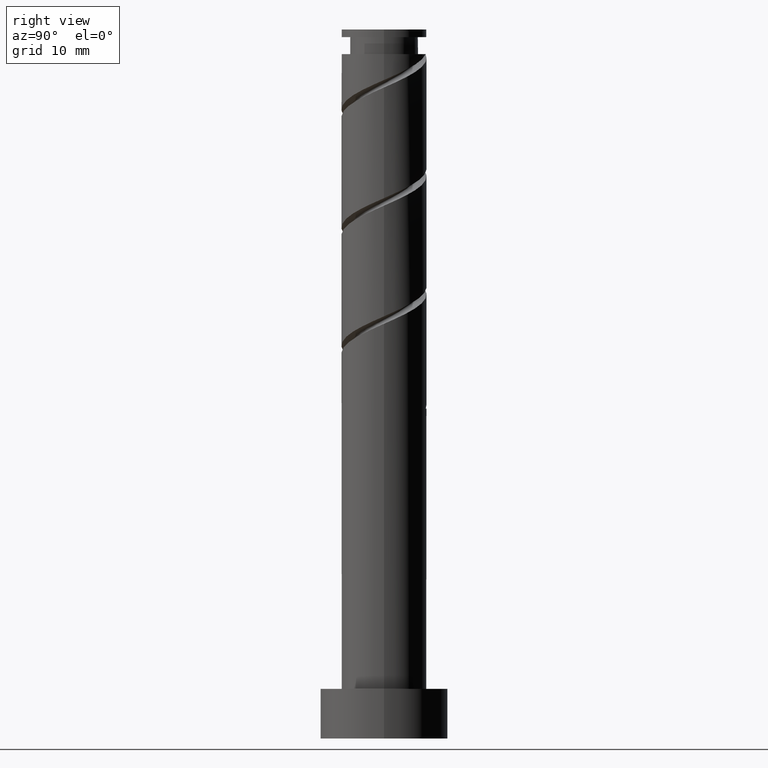
[diagram: clean part render]
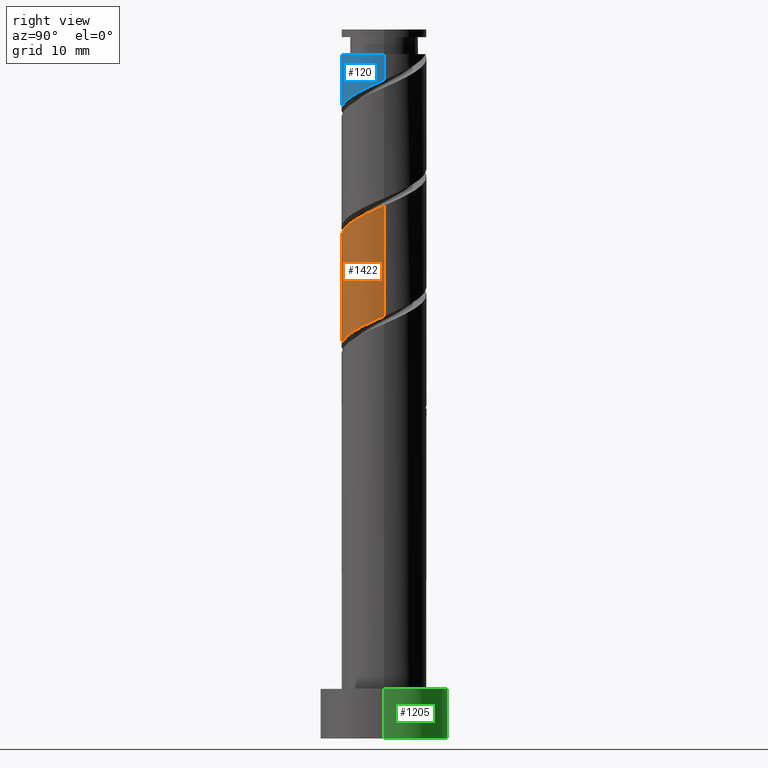
[diagram: same view with three faces highlighted in distinct colors, each labeled with its STEP entity id]
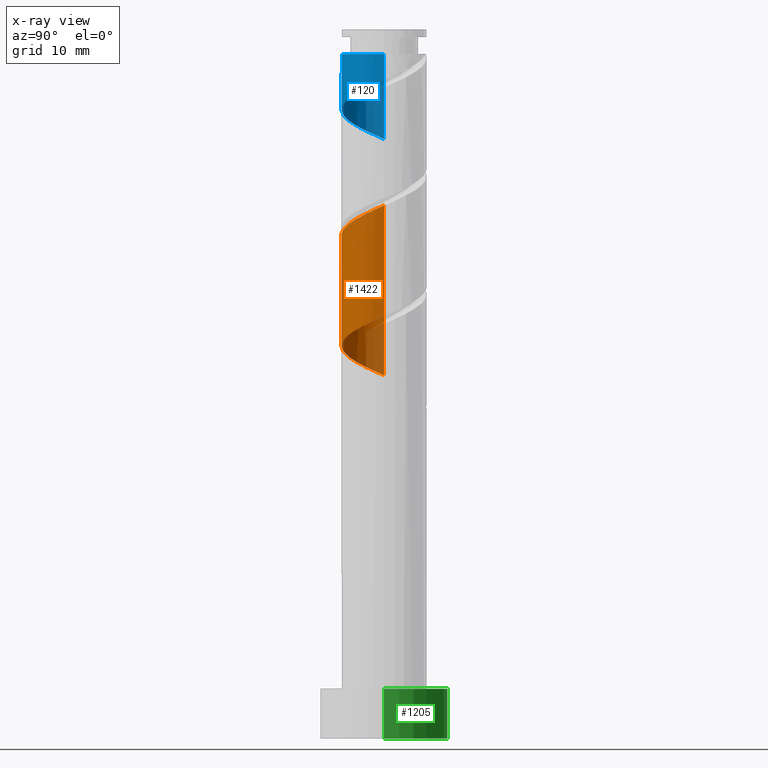
[diagram: x-ray of the same camera — body ghosted, the three highlighted faces saturated]
A machine part, right view with three faces highlighted in distinct colors.
The next image is the same camera in x-ray (body ghosted, the three faces saturated) — at least one of them is partly hidden behind the body in this view.
Their STEP definitions:

[orange] entity #1422 — the highlighted cylindrical surface (partial cylindrical patch) has radius 6 mm, axis along (-0, -0, -1).
#6 =( BOUNDED_CURVE ( )  B_SPLINE_CURVE ( 2, ( #596, #740, #279, #150, #485, #730, #368, #1312, #58, #1306, #1062, #1046, #704, #51, #176, #272, #1167, #842, #949, #287, #30 ),
 .UNSPECIFIED., .F., .T. ) 
 B_SPLINE_CURVE_WITH_KNOTS ( ( 3, 2, 2, 2, 2, 2, 2, 2, 2, 2, 3 ),
 ( 0.8045248053855290626, 0.8055555555555555802, 0.8194444444444444198, 0.8333333333333333703, 0.8472222222222222099, 0.8611111111111111605, 0.8750000000000000000, 0.8888888888888888395, 0.9027777777777777901, 0.9166666666666666297, 0.9295248053855290626 ),
 .UNSPECIFIED. ) 
 CURVE ( )  GEOMETRIC_REPRESENTATION_ITEM ( )  RATIONAL_B_SPLINE_CURVE ( ( 0.9071930855141192573, 0.9080659294509669799, 0.9090909090909071733, 0.8952797754656418583, 0.9090909090909071733, 0.8952797754656418583, 0.9090909090909071733, 0.8952797754656418583, 0.9090909090909071733, 0.8952797754656418583, 0.9090909090909071733, 0.8952797754656418583, 0.9090909090909071733, 0.8952797754656418583, 0.9090909090909071733, 0.8952797754656418583, 0.9090909090909071733, 0.8952797754656418583, 0.9090909090909071733, 0.8963047551055818296, 0.9071930855141192573 ) ) 
 REPRESENTATION_ITEM ( '' )  );
#30 = CARTESIAN_POINT ( 'NONE',  ( -6.000000000000001776, -2.793586744269143145E-15, 51.21902418610984853 ) ) ;
#44 = DIRECTION ( 'NONE',  ( -0.000000000000000000, -0.000000000000000000, -1.000000000000000000 ) ) ;
#51 = CARTESIAN_POINT ( 'NONE',  ( -2.230787571093720612, -5.669468243246560846, 54.39187300149144733 ) ) ;
#57 = VERTEX_POINT ( 'NONE', #103 ) ;
#58 = CARTESIAN_POINT ( 'NONE',  ( 2.864945628354387264, -5.271820041178671978, 56.70668781630626398 ) ) ;
#59 = LINE ( 'NONE', #364, #854 ) ;
#67 = CARTESIAN_POINT ( 'NONE',  ( -5.998002894017859354, -0.1547943259732638965, 66.89187300149146154 ) ) ;
#84 = CARTESIAN_POINT ( 'NONE',  ( 6.000000000000010658, -4.227727532770921479E-15, 75.15731440946565556 ) ) ;
#90 = CARTESIAN_POINT ( 'NONE',  ( 6.000000000000010658, -4.227727532770921479E-15, 75.15731440946565556 ) ) ;
#100 = CARTESIAN_POINT ( 'NONE',  ( 3.133057265663464985, -5.117025715205415715, 72.44742855704700446 ) ) ;
#103 = CARTESIAN_POINT ( 'NONE',  ( -6.000000000000001776, -2.793586744269143145E-15, 51.21902418610984853 ) ) ;
#150 = CARTESIAN_POINT ( 'NONE',  ( 5.970708477888182486, -1.212404066556068694, 59.02150263112106643 ) ) ;
#176 = CARTESIAN_POINT ( 'NONE',  ( -3.133057265663461877, -5.117025715205405945, 53.92891003852850673 ) ) ;
#183 = CARTESIAN_POINT ( 'NONE',  ( -0.8890996198464066191, -5.933759505236886334, 70.59557670519517103 ) ) ;
#190 = CARTESIAN_POINT ( 'NONE',  ( 5.689221836516479947, -1.905978723623161342, 74.29928040889886631 ) ) ;
#196 = EDGE_CURVE ( 'NONE', #968, #57, #59, .T. ) ;
#212 = CARTESIAN_POINT ( 'NONE',  ( 6.000000000000002665, 3.734741636723452938E-16, 59.55235751944319134 ) ) ;
#272 = CARTESIAN_POINT ( 'NONE',  ( -4.035326960233204474, -4.564583187164251044, 53.46594707556551640 ) ) ;
#279 = CARTESIAN_POINT ( 'NONE',  ( 5.998002894017848696, -0.1547943259732674770, 59.48446559408404966 ) ) ;
#287 = CARTESIAN_POINT ( 'NONE',  ( -6.000000000000001776, -0.9783262309227395148, 51.64894369847546329 ) ) ;
#298 = CARTESIAN_POINT ( 'NONE',  ( -5.583336281405729018, -2.196896895336367894, 67.81779892741737115 ) ) ;
#319 =( BOUNDED_CURVE ( )  B_SPLINE_CURVE ( 2, ( #771, #858, #67, #645, #298, #1117, #990, #1357, #1091, #1212, #183, #1107, #428, #520, #100, #434, #1335, #546, #190, #629, #90 ),
 .UNSPECIFIED., .F., .T. ) 
 B_SPLINE_CURVE_WITH_KNOTS ( ( 3, 2, 2, 2, 2, 2, 2, 2, 2, 2, 3 ),
 ( 0.3045248053855290626, 0.3055555555555555802, 0.3194444444444444198, 0.3333333333333333703, 0.3472222222222222099, 0.3611111111111111605, 0.3750000000000000000, 0.3888888888888888395, 0.4027777777777777901, 0.4166666666666666297, 0.4295248053855290626 ),
 .UNSPECIFIED. ) 
 CURVE ( )  GEOMETRIC_REPRESENTATION_ITEM ( )  RATIONAL_B_SPLINE_CURVE ( ( 0.9071930855141251415, 0.9080659294509728641, 0.9090909090909129464, 0.8952797754656475204, 0.9090909090909129464, 0.8952797754656475204, 0.9090909090909129464, 0.8952797754656475204, 0.9090909090909129464, 0.8952797754656475204, 0.9090909090909129464, 0.8952797754656475204, 0.9090909090909129464, 0.8952797754656475204, 0.9090909090909129464, 0.8952797754656475204, 0.9090909090909129464, 0.8952797754656475204, 0.9090909090909129464, 0.8963047551055876028, 0.9071930855141251415 ) ) 
 REPRESENTATION_ITEM ( '' )  );
#364 = CARTESIAN_POINT ( 'NONE',  ( -6.000000000000000888, 0.000000000000000000, 100.0000000000000000 ) ) ;
#368 = CARTESIAN_POINT ( 'NONE',  ( 4.495236911988526707, -3.974021276376848100, 57.63261374223219491 ) ) ;
#381 = DIRECTION ( 'NONE',  ( -0.000000000000000000, -0.000000000000000000, -1.000000000000000000 ) ) ;
#391 = ORIENTED_EDGE ( 'NONE', *, *, #499, .F. ) ;
#400 = VERTEX_POINT ( 'NONE', #212 ) ;
#412 = LINE ( 'NONE', #1454, #997 ) ;
#428 = CARTESIAN_POINT ( 'NONE',  ( 1.193984924527945024, -5.880000000000011440, 71.52150263112109485 ) ) ;
#434 = CARTESIAN_POINT ( 'NONE',  ( 4.035326960233208027, -4.564583187164259037, 72.91039152000993795 ) ) ;
#476 = EDGE_CURVE ( 'NONE', #968, #580, #319, .T. ) ;
#485 = CARTESIAN_POINT ( 'NONE',  ( 5.583336281405718360, -2.196896895336366562, 58.55853966815811162 ) ) ;
#499 = EDGE_CURVE ( 'NONE', #580, #400, #412, .T. ) ;
#503 = EDGE_LOOP ( 'NONE', ( #391, #1043, #1190, #1317 ) ) ;
#520 = CARTESIAN_POINT ( 'NONE',  ( 2.230787571093717503, -5.669468243246575057, 71.98446559408404255 ) ) ;
#537 = DIRECTION ( 'NONE',  ( -0.000000000000000000, -0.000000000000000000, -1.000000000000000000 ) ) ;
#546 = CARTESIAN_POINT ( 'NONE',  ( 5.353146362885433440, -2.909142032636777842, 73.83631744593589019 ) ) ;
#550 = CARTESIAN_POINT ( 'NONE',  ( -6.000000000000011546, 4.362178231692965454E-15, 66.82398107613232696 ) ) ;
#580 = VERTEX_POINT ( 'NONE', #84 ) ;
#596 = CARTESIAN_POINT ( 'NONE',  ( 6.000000000000002665, 3.734741636723452938E-16, 59.55235751944319134 ) ) ;
#615 = CYLINDRICAL_SURFACE ( 'NONE', #884, 6.000000000000000888 ) ;
#629 = CARTESIAN_POINT ( 'NONE',  ( 6.000000000000009770, -0.9783262309227460651, 74.72739489710004079 ) ) ;
#645 = CARTESIAN_POINT ( 'NONE',  ( -5.970708477888191368, -1.212404066556068249, 67.35483596445439503 ) ) ;
#704 = CARTESIAN_POINT ( 'NONE',  ( -1.193984924527944802, -5.879999999999999893, 54.85483596445440924 ) ) ;
#730 = CARTESIAN_POINT ( 'NONE',  ( 5.195964084923254234, -3.181389724116668649, 58.09557670519514261 ) ) ;
#740 = CARTESIAN_POINT ( 'NONE',  ( 6.000000000000001776, -0.07741004599212769621, 59.51834014551081964 ) ) ;
#771 = CARTESIAN_POINT ( 'NONE',  ( -6.000000000000012434, 4.362178231692966242E-15, 66.82398107613232696 ) ) ;
#842 = CARTESIAN_POINT ( 'NONE',  ( -5.353146362885426335, -2.909142032636772068, 52.54002114963959258 ) ) ;
#854 = VECTOR ( 'NONE', #381, 1000.000000000000000 ) ;
#858 = CARTESIAN_POINT ( 'NONE',  ( -6.000000000000010658, -0.07741004599212389370, 66.85799845006468445 ) ) ;
#884 = AXIS2_PLACEMENT_3D ( 'NONE', #1192, #44, #1184 ) ;
#949 = CARTESIAN_POINT ( 'NONE',  ( -5.689221836516472841, -1.905978723623153348, 52.07705818667664488 ) ) ;
#968 = VERTEX_POINT ( 'NONE', #550 ) ;
#990 = CARTESIAN_POINT ( 'NONE',  ( -4.495236911988537365, -3.974021276376850764, 68.74372485334330918 ) ) ;
#997 = VECTOR ( 'NONE', #537, 1000.000000000000000 ) ;
#1043 = ORIENTED_EDGE ( 'NONE', *, *, #476, .F. ) ;
#1046 = CARTESIAN_POINT ( 'NONE',  ( -0.1571822779621721289, -6.090531756753438053, 55.31779892741737115 ) ) ;
#1052 = FACE_OUTER_BOUND ( 'NONE', #503, .T. ) ;
#1062 = CARTESIAN_POINT ( 'NONE',  ( 0.8890996198464030664, -5.933759505236876564, 55.78076189038034016 ) ) ;
#1091 = CARTESIAN_POINT ( 'NONE',  ( -2.864945628354393481, -5.271820041178679084, 69.66965077926924721 ) ) ;
#1107 = CARTESIAN_POINT ( 'NONE',  ( 0.1571822779621672717, -6.090531756753446935, 71.05853966815810452 ) ) ;
#1117 = CARTESIAN_POINT ( 'NONE',  ( -5.195964084923264892, -3.181389724116668205, 68.28076189038033306 ) ) ;
#1167 = CARTESIAN_POINT ( 'NONE',  ( -4.694236661559316737, -3.736862609900509558, 53.00298411260256159 ) ) ;
#1184 = DIRECTION ( 'NONE',  ( -1.000000000000000000, 0.000000000000000000, 0.000000000000000000 ) ) ;
#1190 = ORIENTED_EDGE ( 'NONE', *, *, #196, .T. ) ;
#1192 = CARTESIAN_POINT ( 'NONE',  ( 0.000000000000000000, 0.000000000000000000, 100.0000000000000000 ) ) ;
#1212 = CARTESIAN_POINT ( 'NONE',  ( -1.935381517654979788, -5.776987253720324844, 70.13261374223216649 ) ) ;
#1306 = CARTESIAN_POINT ( 'NONE',  ( 1.935381517654975347, -5.776987253720316851, 56.24372485334328786 ) ) ;
#1312 = CARTESIAN_POINT ( 'NONE',  ( 3.794509739053796515, -4.766652828637027994, 57.16965077926922589 ) ) ;
#1317 = ORIENTED_EDGE ( 'NONE', *, *, #1468, .F. ) ;
#1335 = CARTESIAN_POINT ( 'NONE',  ( 4.694236661559322066, -3.736862609900517107, 73.37335448297294249 ) ) ;
#1357 = CARTESIAN_POINT ( 'NONE',  ( -3.794509739053804509, -4.766652828637032435, 69.20668781630625688 ) ) ;
#1422 = ADVANCED_FACE ( 'NONE', ( #1052 ), #615, .T. ) ;
#1454 = CARTESIAN_POINT ( 'NONE',  ( 6.000000000000000888, 7.347880794884119736E-16, 100.0000000000000000 ) ) ;
#1468 = EDGE_CURVE ( 'NONE', #400, #57, #6, .T. ) ;

[blue] entity #120 — the highlighted cylindrical surface (partial cylindrical patch) has radius 6 mm, axis along (-0, -0, -1).
#93 = CARTESIAN_POINT ( 'NONE',  ( -6.000000000000000000, -3.450901272332469505E-15, 84.55235751944317713 ) ) ;
#107 = CARTESIAN_POINT ( 'NONE',  ( -6.000000000000000888, 0.000000000000000000, 100.0000000000000000 ) ) ;
#115 = CARTESIAN_POINT ( 'NONE',  ( -0.1571822779621721289, -6.090531756753438053, 88.65113226075068553 ) ) ;
#120 = ADVANCED_FACE ( 'NONE', ( #1007 ), #421, .T. ) ;
#199 = DIRECTION ( 'NONE',  ( -0.000000000000000000, -0.000000000000000000, -1.000000000000000000 ) ) ;
#207 = ORIENTED_EDGE ( 'NONE', *, *, #1011, .F. ) ;
#218 = DIRECTION ( 'NONE',  ( -0.000000000000000000, -0.000000000000000000, -1.000000000000000000 ) ) ;
#223 = CARTESIAN_POINT ( 'NONE',  ( 6.000000000000000888, 1.015849725188778931E-15, 92.88569085277649151 ) ) ;
#284 = AXIS2_PLACEMENT_3D ( 'NONE', #864, #1226, #1200 ) ;
#322 = DIRECTION ( 'NONE',  ( -0.000000000000000000, -0.000000000000000000, -1.000000000000000000 ) ) ;
#336 = VECTOR ( 'NONE', #322, 1000.000000000000000 ) ;
#371 = CARTESIAN_POINT ( 'NONE',  ( 5.970708477888182486, -1.212404066556068694, 92.35483596445438081 ) ) ;
#384 = EDGE_LOOP ( 'NONE', ( #918, #623, #416, #207 ) ) ;
#416 = ORIENTED_EDGE ( 'NONE', *, *, #1384, .T. ) ;
#421 = CYLINDRICAL_SURFACE ( 'NONE', #1045, 6.000000000000000888 ) ;
#447 = LINE ( 'NONE', #1100, #336 ) ;
#452 = CARTESIAN_POINT ( 'NONE',  ( 6.000000000000000888, 1.015849725188778931E-15, 92.88569085277649151 ) ) ;
#473 = VERTEX_POINT ( 'NONE', #1249 ) ;
#497 = VERTEX_POINT ( 'NONE', #1001 ) ;
#560 = CARTESIAN_POINT ( 'NONE',  ( -1.193984924527944802, -5.879999999999999893, 88.18816929778775204 ) ) ;
#623 = ORIENTED_EDGE ( 'NONE', *, *, #799, .T. ) ;
#625 = VERTEX_POINT ( 'NONE', #452 ) ;
#639 = CARTESIAN_POINT ( 'NONE',  ( -5.689221836516472841, -1.905978723623153348, 85.41039152000998058 ) ) ;
#660 = LINE ( 'NONE', #107, #930 ) ;
#781 = CARTESIAN_POINT ( 'NONE',  ( -5.999999999999999112, -0.9783262309227438447, 84.98227703180880610 ) ) ;
#789 = CARTESIAN_POINT ( 'NONE',  ( 2.864945628354387264, -5.271820041178671978, 90.04002114963958547 ) ) ;
#799 = EDGE_CURVE ( 'NONE', #497, #473, #928, .T. ) ;
#851 = CARTESIAN_POINT ( 'NONE',  ( 3.794509739053796515, -4.766652828637027994, 90.50298411260253317 ) ) ;
#864 = CARTESIAN_POINT ( 'NONE',  ( 0.000000000000000000, 0.000000000000000000, 96.52150263112108064 ) ) ;
#879 = DIRECTION ( 'NONE',  ( -1.000000000000000000, 0.000000000000000000, 0.000000000000000000 ) ) ;
#918 = ORIENTED_EDGE ( 'NONE', *, *, #1032, .F. ) ;
#919 =( BOUNDED_CURVE ( )  B_SPLINE_CURVE ( 2, ( #223, #1361, #1412, #371, #1273, #1151, #1033, #851, #789, #1134, #1463, #115, #560, #1126, #992, #1111, #1014, #1487, #639, #781, #93 ),
 .UNSPECIFIED., .F., .T. ) 
 B_SPLINE_CURVE_WITH_KNOTS ( ( 3, 2, 2, 2, 2, 2, 2, 2, 2, 2, 3 ),
 ( 0.3045248053855291182, 0.3055555555555555802, 0.3194444444444444198, 0.3333333333333333148, 0.3472222222222222099, 0.3611111111111111049, 0.3750000000000000000, 0.3888888888888888951, 0.4027777777777777901, 0.4166666666666666852, 0.4295248053855290071 ),
 .UNSPECIFIED. ) 
 CURVE ( )  GEOMETRIC_REPRESENTATION_ITEM ( )  RATIONAL_B_SPLINE_CURVE ( ( 0.9071930855141194794, 0.9080659294509670909, 0.9090909090909071733, 0.8952797754656418583, 0.9090909090909071733, 0.8952797754656418583, 0.9090909090909071733, 0.8952797754656418583, 0.9090909090909071733, 0.8952797754656418583, 0.9090909090909071733, 0.8952797754656418583, 0.9090909090909071733, 0.8952797754656418583, 0.9090909090909071733, 0.8952797754656418583, 0.9090909090909071733, 0.8952797754656418583, 0.9090909090909071733, 0.8963047551055820517, 0.9071930855141192573 ) ) 
 REPRESENTATION_ITEM ( '' )  );
#928 = CIRCLE ( 'NONE', #284, 6.000000000000002665 ) ;
#930 = VECTOR ( 'NONE', #218, 1000.000000000000000 ) ;
#992 = CARTESIAN_POINT ( 'NONE',  ( -3.133057265663461877, -5.117025715205405945, 87.26224337186182822 ) ) ;
#1001 = CARTESIAN_POINT ( 'NONE',  ( 6.000000000000002665, 7.347880794884121708E-16, 96.52150263112108064 ) ) ;
#1007 = FACE_OUTER_BOUND ( 'NONE', #384, .T. ) ;
#1011 = EDGE_CURVE ( 'NONE', #625, #1112, #919, .T. ) ;
#1014 = CARTESIAN_POINT ( 'NONE',  ( -4.694236661559316737, -3.736862609900509558, 86.33631744593589019 ) ) ;
#1032 = EDGE_CURVE ( 'NONE', #497, #625, #447, .T. ) ;
#1033 = CARTESIAN_POINT ( 'NONE',  ( 4.495236911988526707, -3.974021276376848100, 90.96594707556552351 ) ) ;
#1045 = AXIS2_PLACEMENT_3D ( 'NONE', #1224, #199, #879 ) ;
#1100 = CARTESIAN_POINT ( 'NONE',  ( 6.000000000000000888, 7.347880794884119736E-16, 100.0000000000000000 ) ) ;
#1111 = CARTESIAN_POINT ( 'NONE',  ( -4.035326960233204474, -4.564583187164251044, 86.79928040889885210 ) ) ;
#1112 = VERTEX_POINT ( 'NONE', #1283 ) ;
#1126 = CARTESIAN_POINT ( 'NONE',  ( -2.230787571093720612, -5.669468243246560846, 87.72520633482474750 ) ) ;
#1134 = CARTESIAN_POINT ( 'NONE',  ( 1.935381517654975347, -5.776987253720316851, 89.57705818667659514 ) ) ;
#1151 = CARTESIAN_POINT ( 'NONE',  ( 5.195964084923254234, -3.181389724116668649, 91.42891003852845699 ) ) ;
#1200 = DIRECTION ( 'NONE',  ( -1.000000000000000000, 0.000000000000000000, 0.000000000000000000 ) ) ;
#1224 = CARTESIAN_POINT ( 'NONE',  ( 0.000000000000000000, 0.000000000000000000, 100.0000000000000000 ) ) ;
#1226 = DIRECTION ( 'NONE',  ( -0.000000000000000000, -0.000000000000000000, -1.000000000000000000 ) ) ;
#1249 = CARTESIAN_POINT ( 'NONE',  ( -6.000000000000002665, 0.000000000000000000, 96.52150263112108064 ) ) ;
#1273 = CARTESIAN_POINT ( 'NONE',  ( 5.583336281405718360, -2.196896895336366562, 91.89187300149144733 ) ) ;
#1283 = CARTESIAN_POINT ( 'NONE',  ( -6.000000000000000000, -3.450901272332469505E-15, 84.55235751944317713 ) ) ;
#1361 = CARTESIAN_POINT ( 'NONE',  ( 6.000000000000001776, -0.07741004599213152648, 92.85167347884414824 ) ) ;
#1384 = EDGE_CURVE ( 'NONE', #473, #1112, #660, .T. ) ;
#1412 = CARTESIAN_POINT ( 'NONE',  ( 5.998002894017848696, -0.1547943259732674770, 92.81779892741738536 ) ) ;
#1463 = CARTESIAN_POINT ( 'NONE',  ( 0.8890996198464030664, -5.933759505236876564, 89.11409522371369007 ) ) ;
#1487 = CARTESIAN_POINT ( 'NONE',  ( -5.353146362885426335, -2.909142032636772068, 85.87335448297291407 ) ) ;

[green] entity #1205 — the highlighted cylindrical surface (partial cylindrical patch) has radius 9 mm, axis along (-0, -0, -1).
#8 = CARTESIAN_POINT ( 'NONE',  ( 0.000000000000000000, 0.000000000000000000, 7.000000000000000000 ) ) ;
#71 = EDGE_CURVE ( 'NONE', #125, #1405, #1165, .T. ) ;
#75 = AXIS2_PLACEMENT_3D ( 'NONE', #548, #95, #1253 ) ;
#95 = DIRECTION ( 'NONE',  ( 0.000000000000000000, 0.000000000000000000, 1.000000000000000000 ) ) ;
#125 = VERTEX_POINT ( 'NONE', #1337 ) ;
#201 = DIRECTION ( 'NONE',  ( -0.000000000000000000, -0.000000000000000000, -1.000000000000000000 ) ) ;
#217 = CARTESIAN_POINT ( 'NONE',  ( -9.000000000000000000, 0.000000000000000000, 7.000000000000000000 ) ) ;
#262 = CARTESIAN_POINT ( 'NONE',  ( -9.000000000000000000, 0.000000000000000000, 0.000000000000000000 ) ) ;
#306 = VERTEX_POINT ( 'NONE', #610 ) ;
#375 = VECTOR ( 'NONE', #201, 1000.000000000000000 ) ;
#408 = VERTEX_POINT ( 'NONE', #1440 ) ;
#493 = DIRECTION ( 'NONE',  ( 0.000000000000000000, 0.000000000000000000, 1.000000000000000000 ) ) ;
#510 = EDGE_LOOP ( 'NONE', ( #1181, #725, #758, #1482 ) ) ;
#548 = CARTESIAN_POINT ( 'NONE',  ( 0.000000000000000000, 0.000000000000000000, 0.000000000000000000 ) ) ;
#610 = CARTESIAN_POINT ( 'NONE',  ( 9.000000000000000000, 1.102182119232617714E-15, 7.000000000000000000 ) ) ;
#684 = DIRECTION ( 'NONE',  ( -1.000000000000000000, 0.000000000000000000, 0.000000000000000000 ) ) ;
#725 = ORIENTED_EDGE ( 'NONE', *, *, #869, .T. ) ;
#758 = ORIENTED_EDGE ( 'NONE', *, *, #71, .T. ) ;
#822 = CYLINDRICAL_SURFACE ( 'NONE', #1442, 9.000000000000000000 ) ;
#869 = EDGE_CURVE ( 'NONE', #306, #125, #902, .T. ) ;
#874 = CARTESIAN_POINT ( 'NONE',  ( 0.000000000000000000, 0.000000000000000000, 7.000000000000000000 ) ) ;
#882 = EDGE_CURVE ( 'NONE', #408, #1405, #1009, .T. ) ;
#902 = LINE ( 'NONE', #1237, #375 ) ;
#957 = DIRECTION ( 'NONE',  ( 1.000000000000000000, 0.000000000000000000, 0.000000000000000000 ) ) ;
#1009 = LINE ( 'NONE', #217, #1166 ) ;
#1013 = DIRECTION ( 'NONE',  ( -0.000000000000000000, -0.000000000000000000, -1.000000000000000000 ) ) ;
#1137 = DIRECTION ( 'NONE',  ( -0.000000000000000000, -0.000000000000000000, -1.000000000000000000 ) ) ;
#1165 = CIRCLE ( 'NONE', #75, 9.000000000000000000 ) ;
#1166 = VECTOR ( 'NONE', #1137, 1000.000000000000000 ) ;
#1181 = ORIENTED_EDGE ( 'NONE', *, *, #1311, .F. ) ;
#1205 = ADVANCED_FACE ( 'NONE', ( #1401 ), #822, .T. ) ;
#1237 = CARTESIAN_POINT ( 'NONE',  ( 9.000000000000000000, 1.102182119232617714E-15, 7.000000000000000000 ) ) ;
#1253 = DIRECTION ( 'NONE',  ( 1.000000000000000000, 0.000000000000000000, 0.000000000000000000 ) ) ;
#1311 = EDGE_CURVE ( 'NONE', #306, #408, #1369, .T. ) ;
#1337 = CARTESIAN_POINT ( 'NONE',  ( 9.000000000000000000, 1.102182119232617714E-15, 0.000000000000000000 ) ) ;
#1348 = AXIS2_PLACEMENT_3D ( 'NONE', #874, #493, #957 ) ;
#1369 = CIRCLE ( 'NONE', #1348, 9.000000000000000000 ) ;
#1401 = FACE_OUTER_BOUND ( 'NONE', #510, .T. ) ;
#1405 = VERTEX_POINT ( 'NONE', #262 ) ;
#1440 = CARTESIAN_POINT ( 'NONE',  ( -9.000000000000000000, 0.000000000000000000, 7.000000000000000000 ) ) ;
#1442 = AXIS2_PLACEMENT_3D ( 'NONE', #8, #1013, #684 ) ;
#1482 = ORIENTED_EDGE ( 'NONE', *, *, #882, .F. ) ;